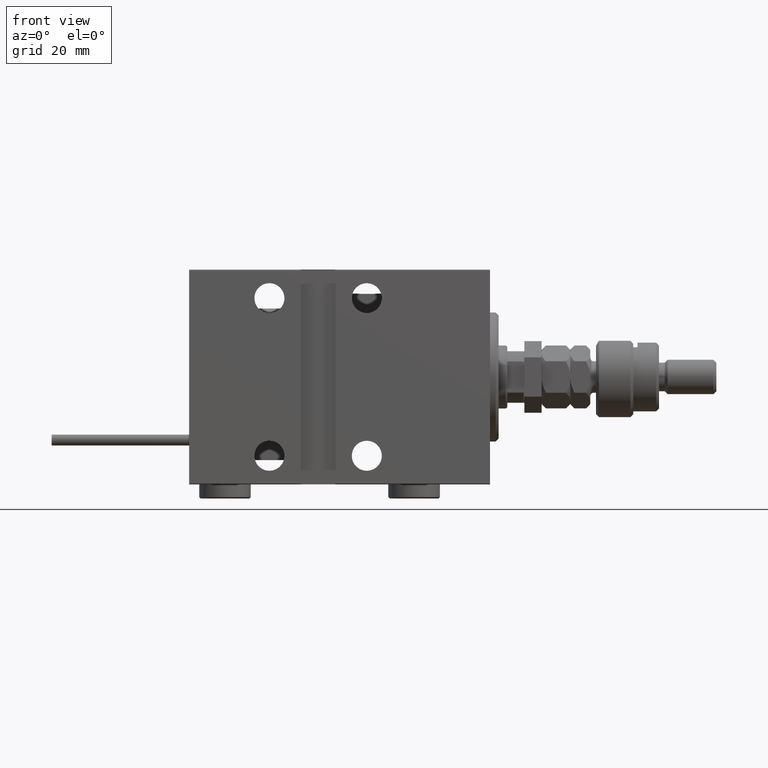
[diagram: clean part render]
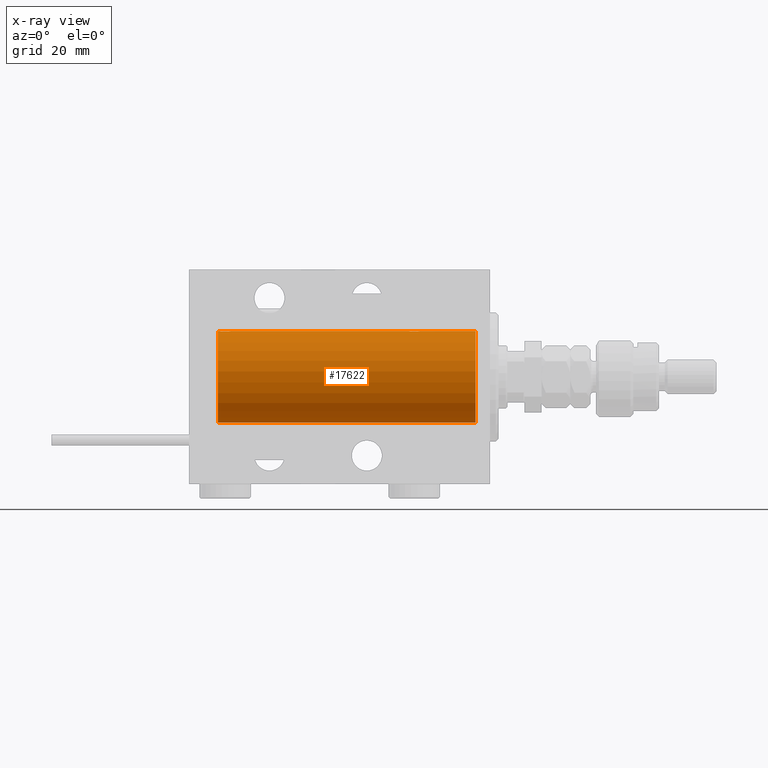
[diagram: x-ray — body ghosted, one internal face saturated and labeled with its STEP entity id]
A machine part, front view, then the same camera in x-ray: the body is ghosted and one INTERNAL B-rep face — a face not visible from any outside direction — is saturated and labeled: STEP entity #17622.
In plain terms, the highlighted cylindrical surface (partial cylindrical patch) has radius 16 mm, axis along (1, 0, -0).
Its self-contained STEP definition (entity closure, byte-faithful):
#702 = CYLINDRICAL_SURFACE ( 'NONE', #52214, 16.00000000000000000 ) ;
#955 = CARTESIAN_POINT ( 'NONE',  ( 95.00000000000000000, 1.959434878635765131E-15, -16.00000000000000000 ) ) ;
#2564 = CARTESIAN_POINT ( 'NONE',  ( 90.90998471899878552, 1.220169175415117158, 15.95377581882983975 ) ) ;
#2987 = CARTESIAN_POINT ( 'NONE',  ( 28.23568098498261492, 1.002241074716280655, 15.96895041604536480 ) ) ;
#3538 = DIRECTION ( 'NONE',  ( -1.000000000000000000, -0.000000000000000000, -0.000000000000000000 ) ) ;
#3795 = CARTESIAN_POINT ( 'NONE',  ( 24.56430947073869930, 0.5198215460038717595, 15.99206840425678955 ) ) ;
#3807 = CARTESIAN_POINT ( 'NONE',  ( 95.00000000000000000, 0.000000000000000000, 16.00000000000000000 ) ) ;
#4068 = CARTESIAN_POINT ( 'NONE',  ( 24.50000000000000000, -2.739635037742051899E-23, 16.00000000000000000 ) ) ;
#5358 = AXIS2_PLACEMENT_3D ( 'NONE', #8992, #42372, #16935 ) ;
#6136 = CARTESIAN_POINT ( 'NONE',  ( 92.37014691649503106, 2.000047931387137101, 15.87450182760080253 ) ) ;
#6670 = CARTESIAN_POINT ( 'NONE',  ( 92.23748416992103216, 1.987008272775786066, 15.87616016863256974 ) ) ;
#6704 = DIRECTION ( 'NONE',  ( -1.000000000000000000, -0.000000000000000000, -0.000000000000000000 ) ) ;
#6943 = CARTESIAN_POINT ( 'NONE',  ( 90.50000000000000000, -2.738767290746308786E-23, 16.00000000000000000 ) ) ;
#7119 = CIRCLE ( 'NONE', #5358, 16.00000000000000000 ) ;
#7251 = EDGE_CURVE ( 'NONE', #44477, #40641, #30757, .T. ) ;
#7608 = CARTESIAN_POINT ( 'NONE',  ( 95.00000000000000000, 0.000000000000000000, 16.00000000000000000 ) ) ;
#8436 = CARTESIAN_POINT ( 'NONE',  ( 24.70250071394960045, 0.8866640484200088990, 15.97587307151817448 ) ) ;
#8992 = CARTESIAN_POINT ( 'NONE',  ( 5.000000000000004441, 0.000000000000000000, 0.000000000000000000 ) ) ;
#9275 = VERTEX_POINT ( 'NONE', #41941 ) ;
#9942 = CARTESIAN_POINT ( 'NONE',  ( 93.72956111739786422, 1.598790766515141071, 15.92099550861381019 ) ) ;
#10501 = CARTESIAN_POINT ( 'NONE',  ( 91.61382242942730159, 1.797743958659247854, 15.89876304682112007 ) ) ;
#11038 = CARTESIAN_POINT ( 'NONE',  ( 91.98086902289892919, 1.935876924222073248, 15.88247600692093897 ) ) ;
#11209 = CARTESIAN_POINT ( 'NONE',  ( 28.39758870055591444, 0.6452446332038146437, 15.98744362947834574 ) ) ;
#12314 = ORIENTED_EDGE ( 'NONE', *, *, #42250, .T. ) ;
#13981 = EDGE_CURVE ( 'NONE', #9275, #44477, #26846, .T. ) ;
#14102 = EDGE_CURVE ( 'NONE', #9275, #20549, #42684, .T. ) ;
#14308 = CARTESIAN_POINT ( 'NONE',  ( 5.000000000000004441, 1.959434878635765131E-15, -16.00000000000000000 ) ) ;
#16635 = DIRECTION ( 'NONE',  ( -1.000000000000000000, -0.000000000000000000, -0.000000000000000000 ) ) ;
#16935 = DIRECTION ( 'NONE',  ( 0.000000000000000000, 0.000000000000000000, 1.000000000000000000 ) ) ;
#17622 = ADVANCED_FACE ( 'NONE', ( #51821 ), #702, .F. ) ;
#18182 = CARTESIAN_POINT ( 'NONE',  ( 91.17924175171070544, 1.507649250492122173, 15.92908549642227101 ) ) ;
#18993 = CARTESIAN_POINT ( 'NONE',  ( 91.49688752964959804, 1.735145127817741884, 15.90580292899658410 ) ) ;
#19260 = CARTESIAN_POINT ( 'NONE',  ( 90.76517329325047001, 1.003662148334365289, 15.96885838080210718 ) ) ;
#19686 = CARTESIAN_POINT ( 'NONE',  ( 28.00610712468246177, 1.322357532253821910, 15.94553003295878391 ) ) ;
#19958 = CARTESIAN_POINT ( 'NONE',  ( 28.49999999999999645, -1.207828523974853969E-15, 16.00000000000000000 ) ) ;
#20048 = ORIENTED_EDGE ( 'NONE', *, *, #7251, .F. ) ;
#20062 = VERTEX_POINT ( 'NONE', #36684 ) ;
#20379 = ORIENTED_EDGE ( 'NONE', *, *, #34575, .T. ) ;
#20480 = CARTESIAN_POINT ( 'NONE',  ( 25.17924175171067702, 1.507649250492130388, 15.92908549642226745 ) ) ;
#20549 = VERTEX_POINT ( 'NONE', #52076 ) ;
#20755 = CARTESIAN_POINT ( 'NONE',  ( 24.76517329325045225, 1.003662148334361959, 15.96885838080210007 ) ) ;
#21462 = EDGE_CURVE ( 'NONE', #45954, #29066, #37433, .T. ) ;
#21474 = B_SPLINE_CURVE_WITH_KNOTS ( 'NONE', 3,
 ( #19958, #53287, #45089, #48672, #11209, #32793, #2987, #44575, #19686, #36376, #48939, #28136, #44824, #24055, #40731, #49465, #37998, #46725, #21575, #25666, #20480, #46192, #24584, #20755, #8436, #41255, #3795, #37171, #50822, #4068 ),
 .UNSPECIFIED., .F., .F.,
 ( 4, 2, 2, 2, 2, 2, 2, 2, 2, 2, 2, 2, 2, 2, 4 ),
 ( 1.745049934674283425E-18, 0.0003911894522871204737, 0.0007823789045742392126, 0.001173568356861357789, 0.001564757809148476691, 0.002347136713722706037, 0.003129515618296936034, 0.003520705070584051466, 0.003911894522871166464, 0.004303083975158282330, 0.004694273427445396461, 0.005085462879732512327, 0.005476652332019627326, 0.005867841784306743191, 0.006259031236593858190 ),
 .UNSPECIFIED. ) ;
#21575 = CARTESIAN_POINT ( 'NONE',  ( 25.49688752964961225, 1.735145127817741439, 15.90580292899658410 ) ) ;
#21594 = ORIENTED_EDGE ( 'NONE', *, *, #13981, .F. ) ;
#21614 = VECTOR ( 'NONE', #46508, 1000.000000000000000 ) ;
#22823 = CARTESIAN_POINT ( 'NONE',  ( 90.56430947073874904, 0.5198215460038719815, 15.99206840425679310 ) ) ;
#23339 = AXIS2_PLACEMENT_3D ( 'NONE', #40791, #49259, #53080 ) ;
#24055 = CARTESIAN_POINT ( 'NONE',  ( 26.37014691649501685, 2.000047931387139322, 15.87450182760079187 ) ) ;
#24330 = LINE ( 'NONE', #3807, #42024 ) ;
#24395 = ORIENTED_EDGE ( 'NONE', *, *, #41071, .T. ) ;
#24584 = CARTESIAN_POINT ( 'NONE',  ( 24.90998471899876066, 1.220169175415113827, 15.95377581882983442 ) ) ;
#25666 = CARTESIAN_POINT ( 'NONE',  ( 25.28032342557723311, 1.590393755196000347, 15.92092783521424337 ) ) ;
#26636 = CARTESIAN_POINT ( 'NONE',  ( 93.50659181559579736, 1.747750603376301948, 15.90457341008072412 ) ) ;
#26846 = CIRCLE ( 'NONE', #23339, 16.00000000000000000 ) ;
#27456 = CARTESIAN_POINT ( 'NONE',  ( 94.23568098498257939, 1.002241074716279989, 15.96895041604535415 ) ) ;
#27716 = CARTESIAN_POINT ( 'NONE',  ( 91.85613031966988729, 1.898058445420878648, 15.88709929148890510 ) ) ;
#28136 = CARTESIAN_POINT ( 'NONE',  ( 27.02531756459403667, 1.947280337074160927, 15.88137861827786779 ) ) ;
#29066 = VERTEX_POINT ( 'NONE', #31417 ) ;
#30757 = LINE ( 'NONE', #955, #47095 ) ;
#31335 = DIRECTION ( 'NONE',  ( 0.000000000000000000, 0.000000000000000000, 1.000000000000000000 ) ) ;
#31417 = CARTESIAN_POINT ( 'NONE',  ( 5.000000000000004441, 0.000000000000000000, 16.00000000000000000 ) ) ;
#31558 = CARTESIAN_POINT ( 'NONE',  ( 90.60216273501103501, 0.6445079780200546615, 15.98747331501412106 ) ) ;
#31658 = CARTESIAN_POINT ( 'NONE',  ( 24.50000000000000000, -2.739635037742051899E-23, 16.00000000000000000 ) ) ;
#31818 = CARTESIAN_POINT ( 'NONE',  ( 94.43611326682062668, 0.5181437283162084739, 15.99211983514074653 ) ) ;
#32122 = CARTESIAN_POINT ( 'NONE',  ( 95.00000000000000000, 0.000000000000000000, 0.000000000000000000 ) ) ;
#32379 = B_SPLINE_CURVE_WITH_KNOTS ( 'NONE', 3,
 ( #52590, #35948, #43613, #31818, #48505, #39764, #27456, #40038, #47420, #9942, #26636, #35410, #44147, #6136, #6670, #11038, #27716, #10501, #18993, #47697, #18182, #34866, #2564, #19260, #44410, #31558, #22823, #48238, #51787, #6943 ),
 .UNSPECIFIED., .F., .F.,
 ( 4, 2, 2, 2, 2, 2, 2, 2, 2, 2, 2, 2, 2, 2, 4 ),
 ( 3.488315472694475996E-18, 0.0003911894522871309362, 0.0007823789045742584030, 0.001173568356861385761, 0.001564757809148513337, 0.002347136713722738129, 0.003129515618296963356, 0.003520705070584075318, 0.003911894522871188148, 0.004303083975158299677, 0.004694273427445412074, 0.005085462879732524470, 0.005476652332019635999, 0.005867841784306749263, 0.006259031236593860792 ),
 .UNSPECIFIED. ) ;
#32571 = ORIENTED_EDGE ( 'NONE', *, *, #40187, .T. ) ;
#32793 = CARTESIAN_POINT ( 'NONE',  ( 28.29713414748220046, 0.8874076679346754037, 15.97583181162460697 ) ) ;
#33954 = CARTESIAN_POINT ( 'NONE',  ( 95.00000000000000000, 0.000000000000000000, 16.00000000000000000 ) ) ;
#34575 = EDGE_CURVE ( 'NONE', #20549, #38698, #32379, .T. ) ;
#34866 = CARTESIAN_POINT ( 'NONE',  ( 90.99262839687571613, 1.321075116345873601, 15.94564302722883653 ) ) ;
#35410 = CARTESIAN_POINT ( 'NONE',  ( 93.02531756459404733, 1.947280337074161816, 15.88137861827787489 ) ) ;
#35948 = CARTESIAN_POINT ( 'NONE',  ( 94.50000000000002842, 0.1322838750249261119, 16.00000000000000000 ) ) ;
#36376 = CARTESIAN_POINT ( 'NONE',  ( 27.72956111739783580, 1.598790766515148620, 15.92099550861380131 ) ) ;
#36684 = CARTESIAN_POINT ( 'NONE',  ( 28.49999999999999645, -1.207828523974853969E-15, 16.00000000000000000 ) ) ;
#37171 = CARTESIAN_POINT ( 'NONE',  ( 24.51309075167874596, 0.2632563459770819736, 15.99834873924246459 ) ) ;
#37433 = LINE ( 'NONE', #7608, #50921 ) ;
#37517 = ORIENTED_EDGE ( 'NONE', *, *, #21462, .T. ) ;
#37998 = CARTESIAN_POINT ( 'NONE',  ( 25.85613031966986952, 1.898058445420883311, 15.88709929148890510 ) ) ;
#38201 = ORIENTED_EDGE ( 'NONE', *, *, #14102, .T. ) ;
#38698 = VERTEX_POINT ( 'NONE', #42223 ) ;
#39764 = CARTESIAN_POINT ( 'NONE',  ( 94.29713414748218270, 0.8874076679346750707, 15.97583181162461052 ) ) ;
#40038 = CARTESIAN_POINT ( 'NONE',  ( 94.09051504852097025, 1.219564485341765758, 15.95382484008322344 ) ) ;
#40187 = EDGE_CURVE ( 'NONE', #20062, #45954, #21474, .T. ) ;
#40641 = VERTEX_POINT ( 'NONE', #14308 ) ;
#40731 = CARTESIAN_POINT ( 'NONE',  ( 26.23748416992101085, 1.987008272775788731, 15.87616016863256618 ) ) ;
#40791 = CARTESIAN_POINT ( 'NONE',  ( 95.00000000000000000, 0.000000000000000000, 0.000000000000000000 ) ) ;
#41071 = EDGE_CURVE ( 'NONE', #38698, #20062, #24330, .T. ) ;
#41255 = CARTESIAN_POINT ( 'NONE',  ( 24.60216273501104567, 0.6445079780200539954, 15.98747331501412461 ) ) ;
#41397 = CARTESIAN_POINT ( 'NONE',  ( 95.00000000000000000, 1.959434878635765131E-15, -16.00000000000000000 ) ) ;
#41941 = CARTESIAN_POINT ( 'NONE',  ( 95.00000000000000000, 0.000000000000000000, 16.00000000000000000 ) ) ;
#42024 = VECTOR ( 'NONE', #3538, 1000.000000000000000 ) ;
#42223 = CARTESIAN_POINT ( 'NONE',  ( 90.50000000000000000, -2.738767290746308786E-23, 16.00000000000000000 ) ) ;
#42250 = EDGE_CURVE ( 'NONE', #29066, #40641, #7119, .T. ) ;
#42372 = DIRECTION ( 'NONE',  ( -1.000000000000000000, 0.000000000000000000, 0.000000000000000000 ) ) ;
#42684 = LINE ( 'NONE', #33954, #21614 ) ;
#43613 = CARTESIAN_POINT ( 'NONE',  ( 94.48700524008410184, 0.2623312429553332215, 15.99836091803360105 ) ) ;
#44147 = CARTESIAN_POINT ( 'NONE',  ( 92.76191462762255924, 1.999903730784150957, 15.87451999516786216 ) ) ;
#44410 = CARTESIAN_POINT ( 'NONE',  ( 90.70250071394960401, 0.8866640484200096761, 15.97587307151818159 ) ) ;
#44477 = VERTEX_POINT ( 'NONE', #41397 ) ;
#44575 = CARTESIAN_POINT ( 'NONE',  ( 28.09051504852099512, 1.219564485341767091, 15.95382484008323409 ) ) ;
#44824 = CARTESIAN_POINT ( 'NONE',  ( 26.76191462762254858, 1.999903730784154066, 15.87451999516785861 ) ) ;
#45089 = CARTESIAN_POINT ( 'NONE',  ( 28.48700524008413382, 0.2623312429553315561, 15.99836091803360105 ) ) ;
#45954 = VERTEX_POINT ( 'NONE', #31658 ) ;
#46192 = CARTESIAN_POINT ( 'NONE',  ( 24.99262839687570903, 1.321075116345881595, 15.94564302722883298 ) ) ;
#46508 = DIRECTION ( 'NONE',  ( -1.000000000000000000, -0.000000000000000000, -0.000000000000000000 ) ) ;
#46725 = CARTESIAN_POINT ( 'NONE',  ( 25.61382242942729803, 1.797743958659254515, 15.89876304682112007 ) ) ;
#47095 = VECTOR ( 'NONE', #51538, 1000.000000000000000 ) ;
#47420 = CARTESIAN_POINT ( 'NONE',  ( 94.00610712468248664, 1.322357532253812806, 15.94553003295878391 ) ) ;
#47697 = CARTESIAN_POINT ( 'NONE',  ( 91.28032342557723666, 1.590393755196000347, 15.92092783521424693 ) ) ;
#48238 = CARTESIAN_POINT ( 'NONE',  ( 90.51309075167873175, 0.2632563459770824177, 15.99834873924246459 ) ) ;
#48505 = CARTESIAN_POINT ( 'NONE',  ( 94.39758870055594286, 0.6452446332038145327, 15.98744362947834929 ) ) ;
#48597 = EDGE_LOOP ( 'NONE', ( #20048, #21594, #38201, #20379, #24395, #32571, #37517, #12314 ) ) ;
#48672 = CARTESIAN_POINT ( 'NONE',  ( 28.43611326682063378, 0.5181437283162068086, 15.99211983514074298 ) ) ;
#48939 = CARTESIAN_POINT ( 'NONE',  ( 27.50659181559580446, 1.747750603376297729, 15.90457341008072056 ) ) ;
#49259 = DIRECTION ( 'NONE',  ( -1.000000000000000000, 0.000000000000000000, 0.000000000000000000 ) ) ;
#49465 = CARTESIAN_POINT ( 'NONE',  ( 25.98086902289887234, 1.935876924222074358, 15.88247600692093187 ) ) ;
#50822 = CARTESIAN_POINT ( 'NONE',  ( 24.49999999999999289, 0.1305944228192297274, 15.99999999999999645 ) ) ;
#50921 = VECTOR ( 'NONE', #16635, 1000.000000000000000 ) ;
#51538 = DIRECTION ( 'NONE',  ( -1.000000000000000000, -0.000000000000000000, -0.000000000000000000 ) ) ;
#51787 = CARTESIAN_POINT ( 'NONE',  ( 90.49999999999998579, 0.1305944228192297552, 16.00000000000000000 ) ) ;
#51821 = FACE_OUTER_BOUND ( 'NONE', #48597, .T. ) ;
#52076 = CARTESIAN_POINT ( 'NONE',  ( 94.50000000000000000, 3.590027768233731054E-15, 16.00000000000000000 ) ) ;
#52214 = AXIS2_PLACEMENT_3D ( 'NONE', #32122, #6704, #31335 ) ;
#52590 = CARTESIAN_POINT ( 'NONE',  ( 94.50000000000000000, 3.590027768233731054E-15, 16.00000000000000000 ) ) ;
#53080 = DIRECTION ( 'NONE',  ( 0.000000000000000000, 0.000000000000000000, 1.000000000000000000 ) ) ;
#53287 = CARTESIAN_POINT ( 'NONE',  ( 28.49999999999998579, 0.1322838750249257511, 16.00000000000000000 ) ) ;